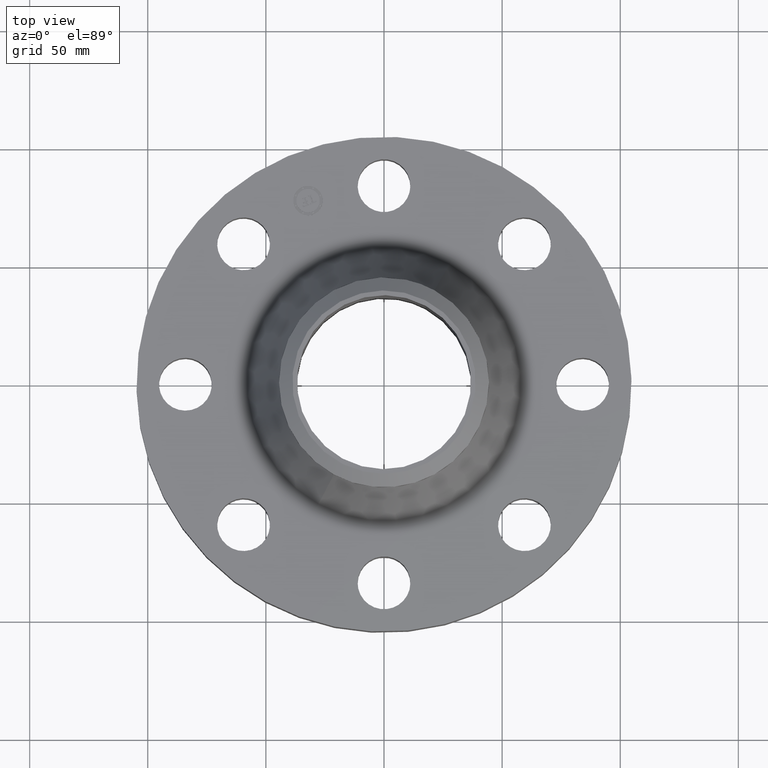
[diagram: clean part render]
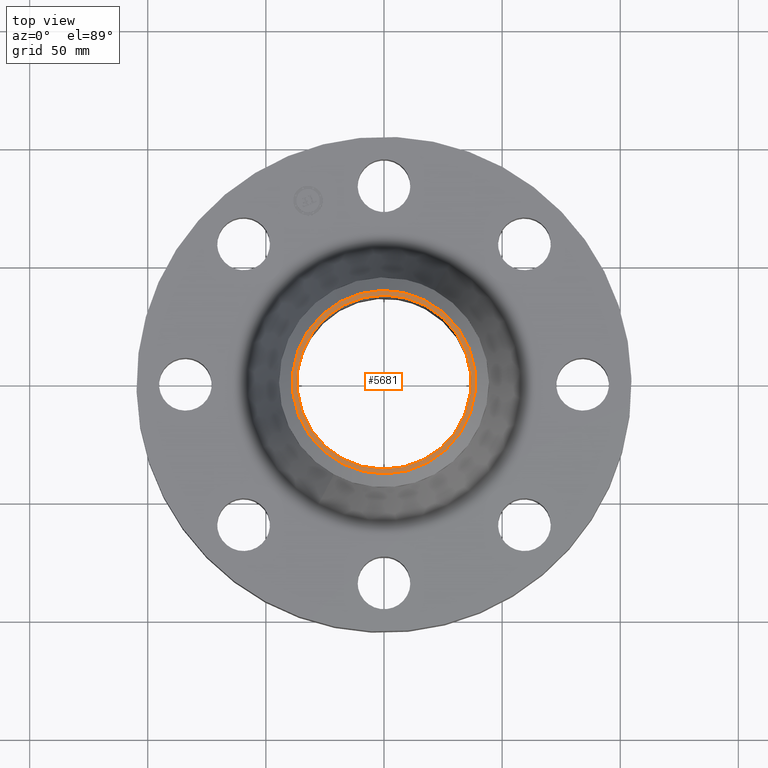
[diagram: same view with one face highlighted and labeled with its STEP entity id]
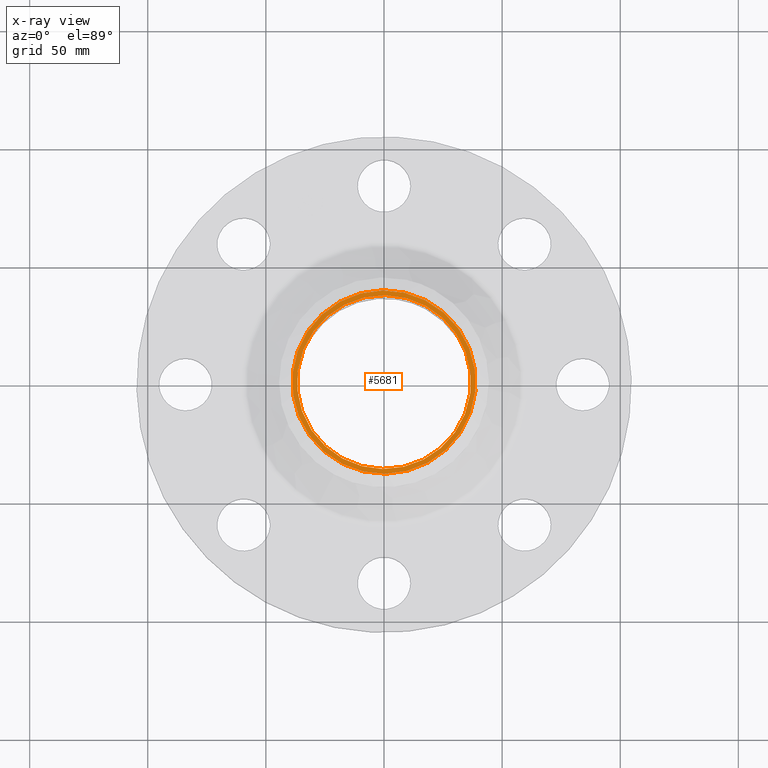
[diagram: x-ray of the same camera — body ghosted, the highlighted face saturated]
A machine part, top view. The second image highlights one B-rep face of the part: STEP entity #5681.
The next image is the same camera in x-ray: the body ghosted, the highlighted face saturated — about 0% of this face is hidden behind the body in this view.
In plain terms, the highlighted planar face has unit normal (0, 0, -1).
Its self-contained STEP definition (entity closure, byte-faithful):
#2636=AXIS2_PLACEMENT_3D('Circle Axis2P3D',#2634,#2635,$) ;
#2668=AXIS2_PLACEMENT_3D('Circle Axis2P3D',#2666,#2667,$) ;
#5657=AXIS2_PLACEMENT_3D('Plane Axis2P3D',#5654,#5655,#5656) ;
#5665=AXIS2_PLACEMENT_3D('Circle Axis2P3D',#5663,#5664,$) ;
#5674=AXIS2_PLACEMENT_3D('Circle Axis2P3D',#5672,#5673,$) ;
#2631=CARTESIAN_POINT('Vertex',(0.73291707339,-1.34159570387,3.25000000001)) ;
#2634=CARTESIAN_POINT('Axis2P3D Location',(0.,0.,3.25000000001)) ;
#2638=CARTESIAN_POINT('Vertex',(-0.732917073391,1.34159570387,3.25000000001)) ;
#2666=CARTESIAN_POINT('Axis2P3D Location',(0.,0.,3.25000000001)) ;
#5654=CARTESIAN_POINT('Axis2P3D Location',(0.,1.75000000001,3.25000000001)) ;
#5663=CARTESIAN_POINT('Axis2P3D Location',(-1.28117289306E-011,9.66617861868E-012,3.25000000001)) ;
#5667=CARTESIAN_POINT('Vertex',(-0.695167030978,-1.27249471473,3.25000000001)) ;
#5669=CARTESIAN_POINT('Vertex',(0.695167030978,1.27249471473,3.25000000001)) ;
#5672=CARTESIAN_POINT('Axis2P3D Location',(4.36653687836E-011,-2.11873213637E-011,3.25000000001)) ;
#2635=DIRECTION('Axis2P3D Direction',(-0.,0.,-0.0393700787402)) ;
#2667=DIRECTION('Axis2P3D Direction',(-0.,0.,-0.0393700787402)) ;
#5655=DIRECTION('Axis2P3D Direction',(0.,0.,-0.0393700787402)) ;
#5656=DIRECTION('Axis2P3D XDirection',(0.0393700787402,0.,0.)) ;
#5664=DIRECTION('Axis2P3D Direction',(0.,0.,-0.0393700787402)) ;
#5673=DIRECTION('Axis2P3D Direction',(0.,0.,-0.0393700787402)) ;
#5660=ORIENTED_EDGE('',*,*,#2670,.T.) ;
#5661=ORIENTED_EDGE('',*,*,#2640,.T.) ;
#5678=ORIENTED_EDGE('',*,*,#5671,.T.) ;
#5679=ORIENTED_EDGE('',*,*,#5676,.T.) ;
#5680=FACE_BOUND('',#5677,.T.) ;
#5681=ADVANCED_FACE('PartBody',(#5662,#5680),#5658,.F.) ;
#2637=CIRCLE('generated circle',#2636,1.52874015749) ;
#2669=CIRCLE('generated circle',#2668,1.52874015749) ;
#5666=CIRCLE('generated circle',#5665,1.44999999999) ;
#5675=CIRCLE('generated circle',#5674,1.44999999999) ;
#2640=EDGE_CURVE('',#2639,#2632,#2637,.F.) ;
#2670=EDGE_CURVE('',#2632,#2639,#2669,.F.) ;
#5671=EDGE_CURVE('',#5668,#5670,#5666,.T.) ;
#5676=EDGE_CURVE('',#5670,#5668,#5675,.T.) ;
#5659=EDGE_LOOP('',(#5660,#5661)) ;
#5677=EDGE_LOOP('',(#5678,#5679)) ;
#5662=FACE_OUTER_BOUND('',#5659,.T.) ;
#5658=PLANE('',#5657) ;
#2632=VERTEX_POINT('',#2631) ;
#2639=VERTEX_POINT('',#2638) ;
#5668=VERTEX_POINT('',#5667) ;
#5670=VERTEX_POINT('',#5669) ;